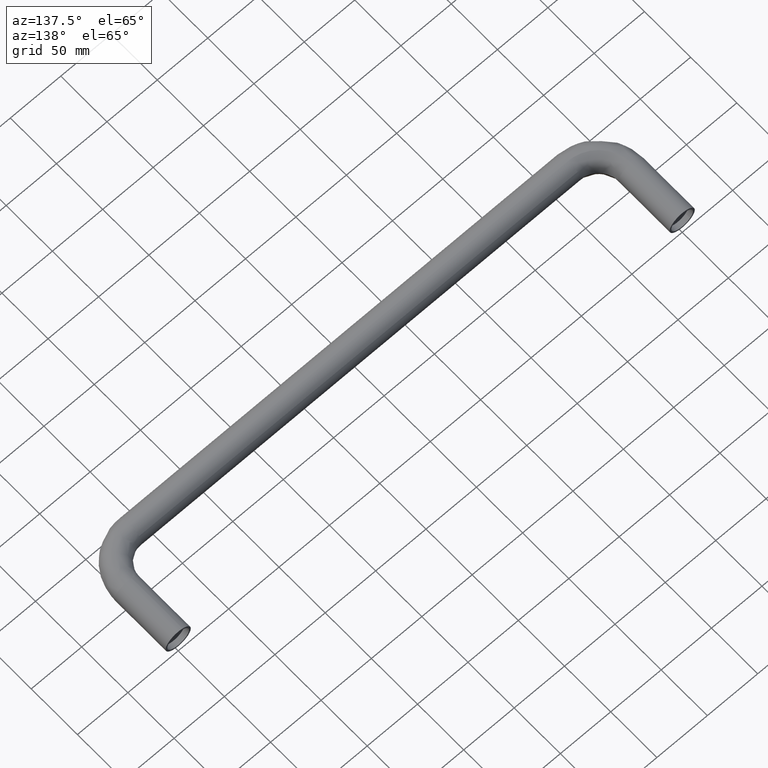
[diagram: clean part render]
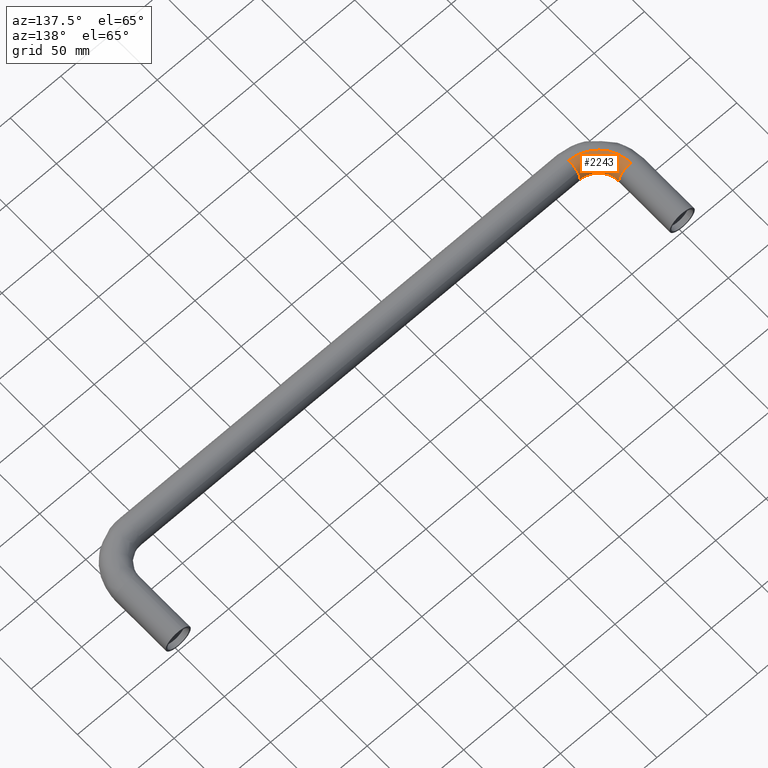
[diagram: same view with one face highlighted and labeled with its STEP entity id]
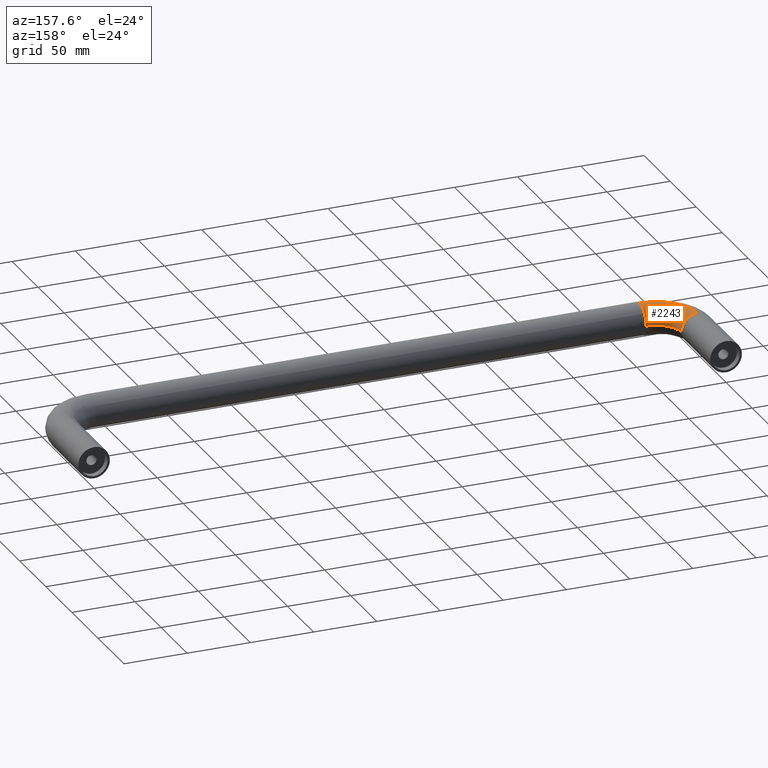
[diagram: same view with one face highlighted and labeled with its STEP entity id]
A machine part, auxiliary view. The second image highlights one B-rep face of the part: STEP entity #2243.
A second angle (auxiliary view) of the same face is appended — the face is thin or edge-on in the first view.
In plain terms, the highlighted face is a freeform B-spline surface patch.
Its self-contained STEP definition (entity closure, byte-faithful):
#1361=CARTESIAN_POINT('',(32.499999999126238,-77.767795817033090,7.844373890179743));
#1362=VERTEX_POINT('',#1361);
#1363=CARTESIAN_POINT('',(32.499999996103540,-87.342924495854845,12.499013052477279));
#1364=VERTEX_POINT('',#1363);
#1365=CARTESIAN_POINT('',(32.499999999126238,-77.767795817033090,7.844373890179743));
#1366=CARTESIAN_POINT('',(32.499999997960693,-81.459948437345048,12.425081498093444));
#1367=CARTESIAN_POINT('',(32.499999996103547,-87.342924495854845,12.499013052477286));
#1375=(BOUNDED_CURVE()B_SPLINE_CURVE(2,(#1365,#1366,#1367),.UNSPECIFIED.,.F.,.U.)B_SPLINE_CURVE_WITH_KNOTS((3,3),(0.858840154701086,0.997784295764047),.UNSPECIFIED.)CURVE()GEOMETRIC_REPRESENTATION_ITEM()RATIONAL_B_SPLINE_CURVE((0.856000952542769,0.834956543609359,0.994854295281091))REPRESENTATION_ITEM(''));
#1376=EDGE_CURVE('',#1362,#1364,#1375,.T.);
#1475=CARTESIAN_POINT('',(32.500000001655842,-75.030429128414596,-0.871666380278624));
#1476=VERTEX_POINT('',#1475);
#1477=CARTESIAN_POINT('',(32.500000001655842,-75.030429128414596,-0.871666380278624));
#1478=CARTESIAN_POINT('',(32.500000000000000,-75.0,-0.436364686713129));
#1479=CARTESIAN_POINT('',(32.500000000000000,-75.0,0.0));
#1480=CARTESIAN_POINT('',(32.499999999999993,-75.0,4.410479177521092));
#1481=CARTESIAN_POINT('',(32.499999999126238,-77.767795817033090,7.844373890179743));
#1489=(BOUNDED_CURVE()B_SPLINE_CURVE(2,(#1477,#1478,#1479,#1480,#1481),.UNSPECIFIED.,.F.,.U.)B_SPLINE_CURVE_WITH_KNOTS((3,2,3),(0.737833666244486,0.750000000000000,0.858840154701086),.UNSPECIFIED.)CURVE()GEOMETRIC_REPRESENTATION_ITEM()RATIONAL_B_SPLINE_CURVE((0.972879833470600,0.985746253380755,1.0,0.872485827013779,0.856000952542769))REPRESENTATION_ITEM(''));
#1490=EDGE_CURVE('',#1476,#1362,#1489,.T.);
#1690=CARTESIAN_POINT('',(0.157075501708463,-55.000000002799233,12.499013052507911));
#1691=VERTEX_POINT('',#1690);
#1705=CARTESIAN_POINT('',(12.469570871586880,-54.999999998405812,-0.871666380257642));
#1706=VERTEX_POINT('',#1705);
#1707=CARTESIAN_POINT('',(12.469570871586884,-54.999999998405812,-0.871666380257642));
#1708=CARTESIAN_POINT('',(12.499999999999995,-54.999999999999993,-0.436364686692071));
#1709=CARTESIAN_POINT('',(12.500000000000000,-55.0,0.0));
#1710=CARTESIAN_POINT('',(12.499999999999998,-55.000000000000007,12.343899117586393));
#1711=CARTESIAN_POINT('',(0.157075501708463,-55.000000002799226,12.499013052507909));
#1719=(BOUNDED_CURVE()B_SPLINE_CURVE(2,(#1707,#1708,#1709,#1710,#1711),.UNSPECIFIED.,.F.,.U.)B_SPLINE_CURVE_WITH_KNOTS((3,2,3),(0.737833666245065,0.750000000000000,0.997784295832618),.UNSPECIFIED.)CURVE()GEOMETRIC_REPRESENTATION_ITEM()RATIONAL_B_SPLINE_CURVE((0.972879833471825,0.985746253381433,1.0,0.709702640088639,0.994854295438915))REPRESENTATION_ITEM(''));
#1720=EDGE_CURVE('',#1706,#1691,#1719,.T.);
#2179=CARTESIAN_POINT('',(0.157075501708463,-55.000000002799226,12.499013052507902));
#2180=CARTESIAN_POINT('',(0.157075504140359,-87.342924493665151,12.499013052547697));
#2181=CARTESIAN_POINT('',(32.499999996103540,-87.342924495854831,12.499013052477284));
#2189=(BOUNDED_CURVE()B_SPLINE_CURVE(2,(#2179,#2180,#2181),.UNSPECIFIED.,.F.,.U.)B_SPLINE_CURVE_WITH_KNOTS((3,3),(-1.747842683488428,-0.278273131195405),.UNSPECIFIED.)CURVE()GEOMETRIC_REPRESENTATION_ITEM()RATIONAL_B_SPLINE_CURVE((0.893710737898865,0.628668022965895,0.884455039368525))REPRESENTATION_ITEM(''));
#2190=EDGE_CURVE('',#1691,#1364,#2189,.T.);
#2197=CARTESIAN_POINT('',(12.469570871586884,-54.999999998405812,-0.871666380257642));
#2198=CARTESIAN_POINT('',(12.469570919817036,-75.030429080306305,-0.871665644693026));
#2199=CARTESIAN_POINT('',(32.500000001655849,-75.030429128414596,-0.871666380278624));
#2207=(BOUNDED_CURVE()B_SPLINE_CURVE(2,(#2197,#2198,#2199),.UNSPECIFIED.,.F.,.U.)B_SPLINE_CURVE_WITH_KNOTS((3,3),(-1.747842683835509,-0.278273130775413),.UNSPECIFIED.)CURVE()GEOMETRIC_REPRESENTATION_ITEM()RATIONAL_B_SPLINE_CURVE((0.873607430651412,0.614526639090470,0.864559931668131))REPRESENTATION_ITEM(''));
#2208=EDGE_CURVE('',#1706,#1476,#2207,.T.);
#2213=CARTESIAN_POINT('',(0.234528131126793,-52.763017571376700,12.499013052547699));
#2214=CARTESIAN_POINT('',(-2.337688715659903,-89.863796392296621,12.499013052547697));
#2215=CARTESIAN_POINT('',(34.761152774811748,-87.263787028741348,12.499013052547690));
#2216=CARTESIAN_POINT('',(12.703609398576058,-53.627505647352066,12.341937554005787));
#2217=CARTESIAN_POINT('',(11.125432900259408,-76.390585392189450,12.341937554005789));
#2218=CARTESIAN_POINT('',(33.887324001383959,-74.795356872443108,12.341937554005787));
#2219=CARTESIAN_POINT('',(12.546910053738983,-53.616641597931014,-0.157075498541907));
#2220=CARTESIAN_POINT('',(10.956241418431183,-76.559903667632867,-0.157075498541907));
#2221=CARTESIAN_POINT('',(33.898305435649952,-74.952048034745431,-0.157075498541907));
#2222=CARTESIAN_POINT('',(12.542425390139961,-53.616330673804136,-0.514791536977554));
#2223=CARTESIAN_POINT('',(10.951399235583448,-76.564749479255894,-0.514791536977554));
#2224=CARTESIAN_POINT('',(33.898619719277434,-74.956532464164070,-0.514791536977554));
#2225=CARTESIAN_POINT('',(12.517538478194588,-53.614605250882988,-0.871664956504799));
#2226=CARTESIAN_POINT('',(10.924528328659468,-76.591640523478731,-0.871664956504799));
#2227=CARTESIAN_POINT('',(33.900363785201222,-74.981418076563330,-0.871664956504799));
#2235=(BOUNDED_SURFACE()B_SPLINE_SURFACE(2,2,((#2213,#2216,#2219,#2222,#2225),(#2214,#2217,#2220,#2223,#2226),(#2215,#2218,#2221,#2224,#2227)),.UNSPECIFIED.,.F.,.F.,.U.)B_SPLINE_SURFACE_WITH_KNOTS((3,3),(3,2,3),(0.0,58.940435853224592),(0.0,20.710678118654741,21.539104453351261),.UNSPECIFIED.)GEOMETRIC_REPRESENTATION_ITEM()RATIONAL_B_SPLINE_SURFACE(((0.921487970695580,0.651590392860676,0.921487970695580,0.910692077877960,0.900759855662087),(0.601353110281207,0.425220862167464,0.601353110281207,0.594307827075570,0.587826165988871),(0.911307631818076,0.644391806205615,0.911307631818076,0.900631008975608,0.890808515145976)))REPRESENTATION_ITEM('')SURFACE());
#2236=ORIENTED_EDGE('',*,*,#1376,.F.);
#2237=ORIENTED_EDGE('',*,*,#1490,.F.);
#2238=ORIENTED_EDGE('',*,*,#2208,.F.);
#2239=ORIENTED_EDGE('',*,*,#1720,.T.);
#2240=ORIENTED_EDGE('',*,*,#2190,.T.);
#2241=EDGE_LOOP('',(#2236,#2237,#2238,#2239,#2240));
#2242=FACE_OUTER_BOUND('',#2241,.T.);
#2243=ADVANCED_FACE('',(#2242),#2235,.T.);